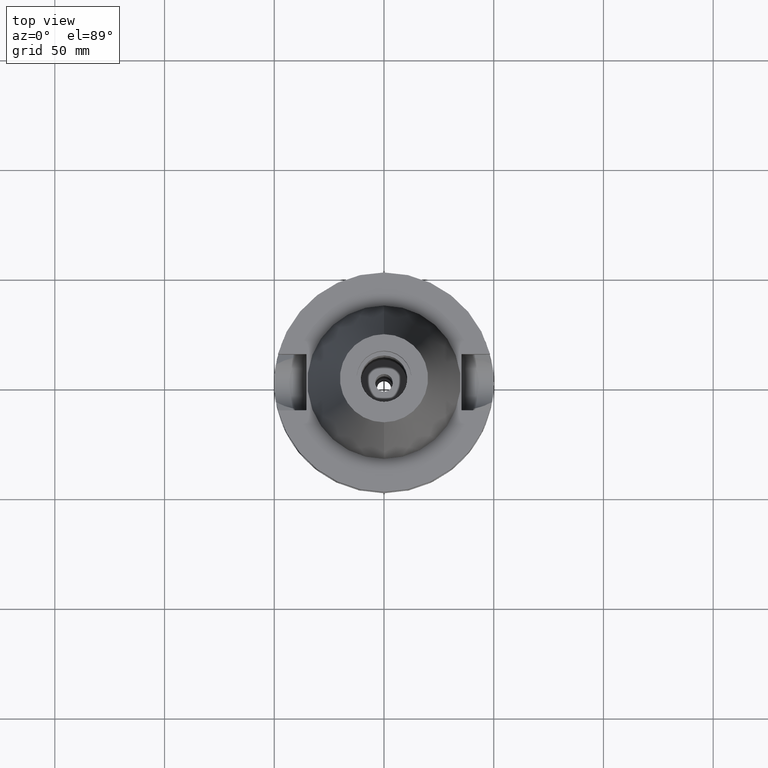
[diagram: clean part render]
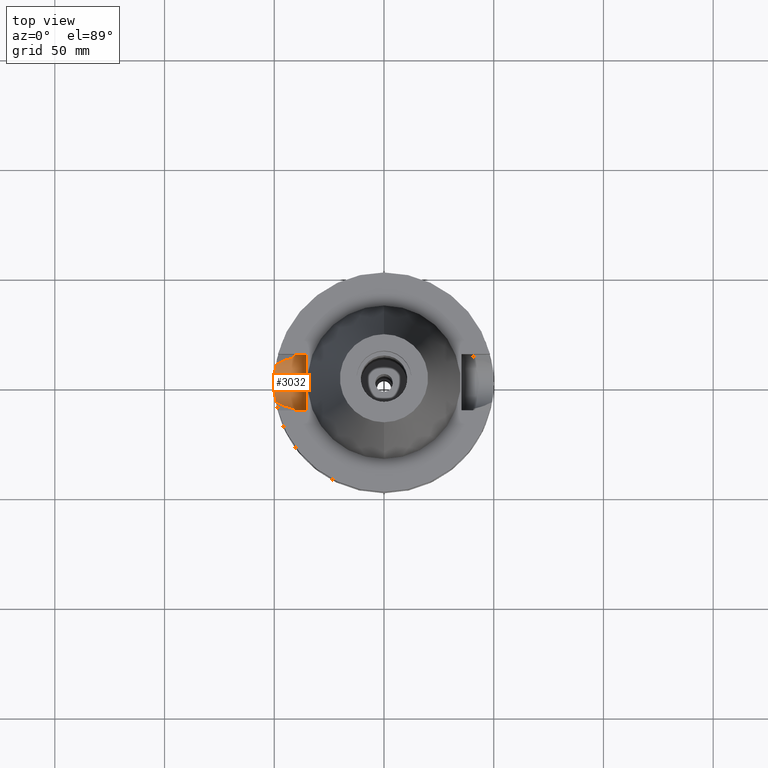
[diagram: same view with one face highlighted and labeled with its STEP entity id]
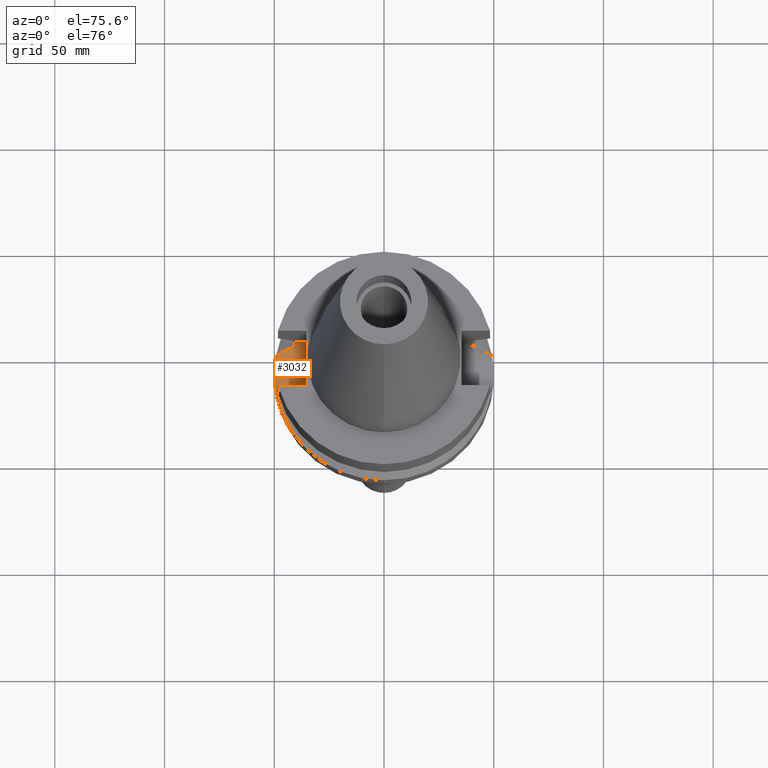
[diagram: same view with one face highlighted and labeled with its STEP entity id]
A machine part, top view. The second image highlights one B-rep face of the part: STEP entity #3032.
A second angle (auxiliary view) of the same face is appended — the face is thin or edge-on in the first view.
In plain terms, the highlighted cylindrical surface (edge-blend (fillet) strip) has radius 12.85 mm, axis along (-1, 0, 0).
Its self-contained STEP definition (entity closure, byte-faithful):
#12 = VECTOR ( 'NONE', #1833, 1000.000000000000000 ) ;
#21 = CARTESIAN_POINT ( 'NONE',  ( -45.51153680948555547, -10.31571076455013269, -28.81225329104412580 ) ) ;
#34 = EDGE_CURVE ( 'NONE', #1887, #485, #1314, .T. ) ;
#38 = ORIENTED_EDGE ( 'NONE', *, *, #2374, .T. ) ;
#47 = CARTESIAN_POINT ( 'NONE',  ( -49.66436400013849806, -5.785502170583692205, -32.62553262852259195 ) ) ;
#63 = CARTESIAN_POINT ( 'NONE',  ( -49.81880725734184523, -4.254068732978789846, -33.27613423622973698 ) ) ;
#140 = DIRECTION ( 'NONE',  ( 1.000000000000000000, 3.440913946376999995E-14, 0.0000000000000000000 ) ) ;
#143 = CARTESIAN_POINT ( 'NONE',  ( -40.68244639105407146, -12.29666286613858084, -24.88711474769678844 ) ) ;
#167 = ORIENTED_EDGE ( 'NONE', *, *, #873, .F. ) ;
#187 = CARTESIAN_POINT ( 'NONE',  ( -40.60092910951220091, -12.56261850439631722, -23.85257851100598003 ) ) ;
#194 = B_SPLINE_CURVE_WITH_KNOTS ( 'NONE', 3,
 ( #1737, #1984, #2962, #709, #222, #2720, #2478, #1191, #21, #1997, #759, #2733, #519, #582, #1317, #1835 ),
 .UNSPECIFIED., .F., .F.,
 ( 4, 2, 2, 1, 1, 1, 1, 2, 2, 4 ),
 ( 0.0000000000000000000, 0.2499999999999817923, 0.3749999999999735767, 0.4374999999999696909, 0.4687499999999678590, 0.4843749999999671374, 0.4921874999999659717, 0.4960937499999655831, 0.4999999999999652500, 1.000000000000000000 ),
 .UNSPECIFIED. ) ;
#208 = VERTEX_POINT ( 'NONE', #2128 ) ;
#211 = CARTESIAN_POINT ( 'NONE',  ( -45.35666226408518042, 10.37432102602085493, -28.73269380965318121 ) ) ;
#222 = CARTESIAN_POINT ( 'NONE',  ( -46.77591822485125306, -9.802183307149345382, -29.46222612251301953 ) ) ;
#229 = CARTESIAN_POINT ( 'NONE',  ( -49.72680802979219550, 5.221633248343043654, -32.89276324369564009 ) ) ;
#264 = CARTESIAN_POINT ( 'NONE',  ( -49.64898610884509367, 5.924049219701441160, -32.55967030404950435 ) ) ;
#285 = CARTESIAN_POINT ( 'NONE',  ( -40.85052569294000335, -11.72538061688000077, -26.40718074535000426 ) ) ;
#310 = CARTESIAN_POINT ( 'NONE',  ( -45.48245625892009514, 10.32666876286955038, -28.79739259577955224 ) ) ;
#321 = VERTEX_POINT ( 'NONE', #1930 ) ;
#381 = VERTEX_POINT ( 'NONE', #1717 ) ;
#426 = CARTESIAN_POINT ( 'NONE',  ( -40.62483067706965301, -12.48524489601429188, -24.19332376315256639 ) ) ;
#442 = CARTESIAN_POINT ( 'NONE',  ( -40.60257244295533496, -12.55730800210175779, -23.87713024257998740 ) ) ;
#462 = CARTESIAN_POINT ( 'NONE',  ( -49.55655204302848915, 6.644431293633355828, -32.14882155011503784 ) ) ;
#482 = CARTESIAN_POINT ( 'NONE',  ( -49.54911688007178583, 6.699663358972188121, -32.11529720883915928 ) ) ;
#485 = VERTEX_POINT ( 'NONE', #2257 ) ;
#487 = CARTESIAN_POINT ( 'NONE',  ( -40.85052569294000335, 11.72538061688000077, -26.40718074535000426 ) ) ;
#509 = CARTESIAN_POINT ( 'NONE',  ( -49.79008146599075246, 4.576641034186114787, -33.15737214668407518 ) ) ;
#519 = CARTESIAN_POINT ( 'NONE',  ( -45.36036240325719149, -10.37294733292019799, -28.73449114628315115 ) ) ;
#553 = CARTESIAN_POINT ( 'NONE',  ( -49.57420851440681275, -6.511617492776406557, -32.22817501045152255 ) ) ;
#563 = ORIENTED_EDGE ( 'NONE', *, *, #2307, .F. ) ;
#569 = CARTESIAN_POINT ( 'NONE',  ( -49.38324903669490595, -7.860828855714136587, -31.35774967417576775 ) ) ;
#575 = DIRECTION ( 'NONE',  ( 0.0000000000000000000, -1.000000000000000000, 0.0000000000000000000 ) ) ;
#582 = CARTESIAN_POINT ( 'NONE',  ( -44.04299288609625762, -10.86792182048281141, -28.05681832449124258 ) ) ;
#623 = CARTESIAN_POINT ( 'NONE',  ( -40.51083188481999997, 12.84999999999999964, -21.14999999999999858 ) ) ;
#648 = EDGE_CURVE ( 'NONE', #485, #1060, #194, .T. ) ;
#654 = CARTESIAN_POINT ( 'NONE',  ( -35.39999999999999858, 1.497743035356999952E-14, -21.14999999999999858 ) ) ;
#655 = ORIENTED_EDGE ( 'NONE', *, *, #972, .T. ) ;
#684 = CARTESIAN_POINT ( 'NONE',  ( -49.37891072606739584, 7.861784143187398044, -31.32216870072557313 ) ) ;
#698 = CARTESIAN_POINT ( 'NONE',  ( -44.09428801575791823, 10.82153218492427627, -28.08304494226428716 ) ) ;
#699 = CARTESIAN_POINT ( 'NONE',  ( -49.99657010604428109, 0.6197521065457266554, -33.98745896372766850 ) ) ;
#709 = CARTESIAN_POINT ( 'NONE',  ( -47.11300662444745768, -9.652607655461894254, -29.63533319679338973 ) ) ;
#715 = CARTESIAN_POINT ( 'NONE',  ( -49.52357036701543791, 6.886290593201245258, -31.99961560274276806 ) ) ;
#750 = CARTESIAN_POINT ( 'NONE',  ( -49.78714585123640290, 4.608515934755402554, -33.14520686597824550 ) ) ;
#759 = CARTESIAN_POINT ( 'NONE',  ( -45.39637948587878213, -10.35937567599534681, -28.75301847058063487 ) ) ;
#763 = CARTESIAN_POINT ( 'NONE',  ( -49.79024291477946207, -4.574903425317671690, -33.15803416391790392 ) ) ;
#772 = B_SPLINE_CURVE_WITH_KNOTS ( 'NONE', 3,
 ( #2898, #1935, #2914, #1443, #698, #1693, #2674, #2435, #211, #1198, #1752, #310, #1969, #2035, #2515 ),
 .UNSPECIFIED., .F., .F.,
 ( 4, 2, 2, 1, 1, 1, 2, 2, 4 ),
 ( 0.0000000000000000000, 0.2500000000000056621, 0.3750000000000091593, 0.4375000000000118239, 0.4687500000000131006, 0.4843750000000147105, 0.4921875000000155431, 0.5000000000000164313, 1.000000000000000000 ),
 .UNSPECIFIED. ) ;
#790 = CARTESIAN_POINT ( 'NONE',  ( -49.79683695212672490, -4.502663508462969588, -33.18534950413661733 ) ) ;
#843 = CARTESIAN_POINT ( 'NONE',  ( -40.51083188481999997, 12.84999999999999964, -21.14999999999999858 ) ) ;
#873 = EDGE_CURVE ( 'NONE', #208, #2572, #3077, .T. ) ;
#884 = VERTEX_POINT ( 'NONE', #2350 ) ;
#922 = CARTESIAN_POINT ( 'NONE',  ( -40.59737061725677876, 12.57411364518127783, -23.79856269428630355 ) ) ;
#939 = CARTESIAN_POINT ( 'NONE',  ( -49.79203021164228460, 4.555405786561365744, -33.16544452546485644 ) ) ;
#940 = CYLINDRICAL_SURFACE ( 'NONE', #2968, 12.85000000000000320 ) ;
#962 = CARTESIAN_POINT ( 'NONE',  ( -40.59544857123437112, 12.58031941217195815, -23.76894563306476016 ) ) ;
#972 = EDGE_CURVE ( 'NONE', #1060, #321, #1350, .T. ) ;
#974 = CARTESIAN_POINT ( 'NONE',  ( -49.45261097669710182, 7.378715930581751792, -31.67219524212046977 ) ) ;
#978 = ORIENTED_EDGE ( 'NONE', *, *, #1289, .T. ) ;
#1029 = CARTESIAN_POINT ( 'NONE',  ( -49.98151994503457018, -1.536776124998682658, -33.93130987540744314 ) ) ;
#1055 = B_SPLINE_CURVE_WITH_KNOTS ( 'NONE', 3,
 ( #843, #2822, #1633, #1386, #1569, #2329, #2171, #1403, #2155, #962, #922, #2380, #1682, #487 ),
 .UNSPECIFIED., .F., .F.,
 ( 4, 2, 2, 1, 1, 2, 2, 4 ),
 ( 0.0000000000000000000, 0.2499999999999897859, 0.3749999999999846234, 0.4374999999999831246, 0.4687499999999832356, 0.4843749999999832356, 0.4999999999999833467, 1.000000000000000000 ),
 .UNSPECIFIED. ) ;
#1060 = VERTEX_POINT ( 'NONE', #285 ) ;
#1113 = AXIS2_PLACEMENT_3D ( 'NONE', #2611, #2118, #575 ) ;
#1136 = VECTOR ( 'NONE', #140, 1000.000000000000000 ) ;
#1191 = CARTESIAN_POINT ( 'NONE',  ( -45.67171378266974102, -10.25422400388750432, -28.89463801037553026 ) ) ;
#1198 = CARTESIAN_POINT ( 'NONE',  ( -45.42021646343764729, 10.35029699050675767, -28.76538144885619985 ) ) ;
#1214 = CARTESIAN_POINT ( 'NONE',  ( -49.78020860953715498, 4.683043310261034264, -33.11642240111309121 ) ) ;
#1229 = CARTESIAN_POINT ( 'NONE',  ( -49.54076674230224597, 6.761186823336355900, -32.07757331929249744 ) ) ;
#1251 = CARTESIAN_POINT ( 'NONE',  ( -49.48027691450566579, -7.211450073653043802, -31.80475318125221307 ) ) ;
#1289 = EDGE_CURVE ( 'NONE', #381, #2572, #2466, .T. ) ;
#1314 = B_SPLINE_CURVE_WITH_KNOTS ( 'NONE', 3,
 ( #2724, #1988, #684, #974, #2948, #1676, #715, #1229, #482, #2454, #2232, #2183, #462, #3160, #264, #1919, #229, #1694, #2967, #1214, #750, #509, #939, #2167, #2899, #2217, #1936, #2201, #2915, #699, #2675, #1444, #2436, #3176, #3190, #1970, #1029, #3008, #2837, #1803, #1786, #63, #2353, #790, #1359, #2263, #763, #2544, #1754, #47, #1531, #2036, #2768, #553, #2782, #3024, #1621, #2016, #1544, #1251, #569, #1560 ),
 .UNSPECIFIED., .F., .F.,
 ( 4, 2, 2, 1, 1, 1, 1, 2, 2, 2, 2, 1, 1, 1, 2, 2, 2, 2, 1, 1, 1, 2, 2, 2, 2, 1, 1, 1, 1, 2, 2, 2, 2, 1, 1, 1, 1, 2, 2, 4 ),
 ( 0.0000000000000000000, 0.06250000000001100509, 0.09375000000001651457, 0.1093750000000188599, 0.1171875000000200950, 0.1210937500000207750, 0.1230468750000213857, 0.1240234375000217049, 0.1250000000000220102, 0.1875000000000213718, 0.2187500000000207334, 0.2343750000000206224, 0.2421875000000206224, 0.2460937500000204281, 0.2480468750000203448, 0.2500000000000202061, 0.3750000000000141553, 0.4375000000000112688, 0.4687500000000097700, 0.4843750000000089928, 0.4921875000000086042, 0.4960937500000084377, 0.5000000000000082157, 0.6250000000000021094, 0.6874999999999990008, 0.7187499999999974465, 0.7343749999999965583, 0.7421874999999958922, 0.7460937499999955591, 0.7480468749999953371, 0.7499999999999951150, 0.8124999999999884537, 0.8437499999999850120, 0.8593749999999835687, 0.8671874999999827915, 0.8710937499999823475, 0.8730468749999823475, 0.8740234374999823475, 0.8749999999999824585, 1.000000000000000000 ),
 .UNSPECIFIED. ) ;
#1317 = CARTESIAN_POINT ( 'NONE',  ( -42.54311803825711280, -11.33231253935101712, -27.28386219128601908 ) ) ;
#1350 = B_SPLINE_CURVE_WITH_KNOTS ( 'NONE', 3,
 ( #1375, #2371, #2655, #143, #2111, #1638, #426, #1408, #3081, #442, #187, #2888, #1865, #2875 ),
 .UNSPECIFIED., .F., .F.,
 ( 4, 2, 2, 1, 1, 2, 2, 4 ),
 ( 0.0000000000000000000, 0.2500000000000097700, 0.3750000000000154321, 0.4375000000000180966, 0.4687500000000194289, 0.4843750000000190403, 0.5000000000000186517, 1.000000000000000000 ),
 .UNSPECIFIED. ) ;
#1359 = CARTESIAN_POINT ( 'NONE',  ( -49.79360975992934613, -4.538122689714040092, -33.17198411708805850 ) ) ;
#1369 = ORIENTED_EDGE ( 'NONE', *, *, #1588, .T. ) ;
#1375 = CARTESIAN_POINT ( 'NONE',  ( -40.85052569294000335, -11.72538061688000077, -26.40718074535000426 ) ) ;
#1386 = CARTESIAN_POINT ( 'NONE',  ( -40.54025378189581374, 12.75731467218668058, -22.70686882179913013 ) ) ;
#1403 = CARTESIAN_POINT ( 'NONE',  ( -40.58662774857589284, 12.60877356363140400, -23.62931612667402703 ) ) ;
#1408 = CARTESIAN_POINT ( 'NONE',  ( -40.61157027093302929, -12.52820949424839547, -24.00859467746296261 ) ) ;
#1443 = CARTESIAN_POINT ( 'NONE',  ( -43.71927017477862165, 10.94309473526337229, -27.88982148177897358 ) ) ;
#1444 = CARTESIAN_POINT ( 'NONE',  ( -49.99978007005141478, 0.1277363648921317207, -33.99951339606992207 ) ) ;
#1531 = CARTESIAN_POINT ( 'NONE',  ( -49.64367505694872307, -5.960659301631875628, -32.53565567242807077 ) ) ;
#1544 = CARTESIAN_POINT ( 'NONE',  ( -49.55415699598221835, -6.662282079201852447, -32.13801721396347233 ) ) ;
#1560 = CARTESIAN_POINT ( 'NONE',  ( -49.26250064874000145, -8.556052234130000045, -30.73730776426999967 ) ) ;
#1569 = CARTESIAN_POINT ( 'NONE',  ( -40.54944812473201665, 12.72805978472033317, -22.93052269427768053 ) ) ;
#1588 = EDGE_CURVE ( 'NONE', #884, #1887, #772, .T. ) ;
#1616 = CARTESIAN_POINT ( 'NONE',  ( -35.39999999999999858, -12.84999999999999964, -21.14999999999999858 ) ) ;
#1621 = CARTESIAN_POINT ( 'NONE',  ( -49.55655823011631611, -6.644396915574215967, -32.14884227883744927 ) ) ;
#1633 = CARTESIAN_POINT ( 'NONE',  ( -40.51818735908894809, 12.82722126770181248, -22.03688626290863795 ) ) ;
#1638 = CARTESIAN_POINT ( 'NONE',  ( -40.63720027270115054, -12.44499102499862353, -24.35263434040134101 ) ) ;
#1647 = DIRECTION ( 'NONE',  ( -1.000000000000000000, 0.0000000000000000000, 0.0000000000000000000 ) ) ;
#1676 = CARTESIAN_POINT ( 'NONE',  ( -49.50798016005921909, 6.996952392741774496, -31.92837050208759209 ) ) ;
#1682 = CARTESIAN_POINT ( 'NONE',  ( -40.73816962964794186, 12.11682243018512750, -25.53412644634842366 ) ) ;
#1693 = CARTESIAN_POINT ( 'NONE',  ( -44.63758165130715838, 10.63538144912474692, -28.36274595295131817 ) ) ;
#1694 = CARTESIAN_POINT ( 'NONE',  ( -49.75319208409520400, 4.961948302318586634, -33.00370953075621827 ) ) ;
#1717 = CARTESIAN_POINT ( 'NONE',  ( -35.39999999999999858, -12.84999999999999964, -21.14999999999999858 ) ) ;
#1737 = CARTESIAN_POINT ( 'NONE',  ( -49.26250064874000145, -8.556052234130000045, -30.73730776426999967 ) ) ;
#1752 = CARTESIAN_POINT ( 'NONE',  ( -45.46248575714179196, 10.33426622337170286, -28.78712144906410586 ) ) ;
#1754 = CARTESIAN_POINT ( 'NONE',  ( -49.72328725741475353, -5.263682542900750327, -32.87883983964418633 ) ) ;
#1777 = CARTESIAN_POINT ( 'NONE',  ( -35.39999999999999858, 12.84999999999999964, -21.14999999999999858 ) ) ;
#1786 = CARTESIAN_POINT ( 'NONE',  ( -49.84644755718477427, -3.921701315968947554, -33.38981237029192783 ) ) ;
#1803 = CARTESIAN_POINT ( 'NONE',  ( -49.86770969762229555, -3.635792841567102140, -33.47650553586836253 ) ) ;
#1833 = DIRECTION ( 'NONE',  ( -1.000000000000000000, 3.440913946376999995E-14, 0.0000000000000000000 ) ) ;
#1835 = CARTESIAN_POINT ( 'NONE',  ( -40.85052569294000335, -11.72538061688000077, -26.40718074535000426 ) ) ;
#1860 = LINE ( 'NONE', #1616, #12 ) ;
#1865 = CARTESIAN_POINT ( 'NONE',  ( -40.51083188481999287, -12.84999999999998721, -22.03309742078719324 ) ) ;
#1887 = VERTEX_POINT ( 'NONE', #2339 ) ;
#1919 = CARTESIAN_POINT ( 'NONE',  ( -49.70815231128459288, 5.396331755793865703, -32.81362775822982059 ) ) ;
#1930 = CARTESIAN_POINT ( 'NONE',  ( -40.51083188481999997, -12.84999999999999964, -21.14999999999999858 ) ) ;
#1935 = CARTESIAN_POINT ( 'NONE',  ( -41.72878221436359070, 11.52142447622554755, -26.86207539215224216 ) ) ;
#1936 = CARTESIAN_POINT ( 'NONE',  ( -49.96641267300124412, 1.854385217468973224, -33.87144511945189151 ) ) ;
#1969 = CARTESIAN_POINT ( 'NONE',  ( -46.92211091234269560, 9.777077076806934386, -29.53782403633513098 ) ) ;
#1970 = CARTESIAN_POINT ( 'NONE',  ( -49.99934626392777659, -0.7783924084006701438, -33.99780972341375218 ) ) ;
#1984 = CARTESIAN_POINT ( 'NONE',  ( -48.69891583527445533, -8.879474368004313334, -30.44867442328018470 ) ) ;
#1988 = CARTESIAN_POINT ( 'NONE',  ( -49.32372953348500033, 8.203519559946931494, -31.05192038010702760 ) ) ;
#1997 = CARTESIAN_POINT ( 'NONE',  ( -45.43099472295201480, -10.34629958904202596, -28.77082437957606942 ) ) ;
#2016 = CARTESIAN_POINT ( 'NONE',  ( -49.55507279109171037, -6.655467508104375263, -32.14214692837576592 ) ) ;
#2035 = CARTESIAN_POINT ( 'NONE',  ( -48.17474286457279931, 9.180279387332983987, -30.18022539452823594 ) ) ;
#2036 = CARTESIAN_POINT ( 'NONE',  ( -49.61106985601747255, -6.224615895861791870, -32.39218330882798114 ) ) ;
#2111 = CARTESIAN_POINT ( 'NONE',  ( -40.66327750826899745, -12.35976744502590563, -24.67240287692017375 ) ) ;
#2118 = DIRECTION ( 'NONE',  ( 1.000000000000000000, 0.0000000000000000000, 0.0000000000000000000 ) ) ;
#2128 = CARTESIAN_POINT ( 'NONE',  ( -40.51083188481999997, 12.84999999999999964, -21.14999999999999858 ) ) ;
#2155 = CARTESIAN_POINT ( 'NONE',  ( -40.59188576338535626, 12.59181613885665385, -23.71309950381344933 ) ) ;
#2167 = CARTESIAN_POINT ( 'NONE',  ( -49.79288518046980982, 4.546060315005117758, -33.16898483581467616 ) ) ;
#2168 = DIRECTION ( 'NONE',  ( 0.0000000000000000000, 0.0000000000000000000, -1.000000000000000000 ) ) ;
#2171 = CARTESIAN_POINT ( 'NONE',  ( -40.57496242610246640, 12.64633064307739474, -23.43373649621299748 ) ) ;
#2183 = CARTESIAN_POINT ( 'NONE',  ( -49.55614273364346190, 6.647481783994168225, -32.14697738339243216 ) ) ;
#2201 = CARTESIAN_POINT ( 'NONE',  ( -49.97921345346022548, 1.472277929477852743, -33.92105547450366032 ) ) ;
#2217 = CARTESIAN_POINT ( 'NONE',  ( -49.91493021339716307, 3.003896464634252972, -33.66817669941325875 ) ) ;
#2221 = EDGE_LOOP ( 'NONE', ( #655, #563, #978, #167, #38, #1369, #3025, #2376 ) ) ;
#2232 = CARTESIAN_POINT ( 'NONE',  ( -49.55497938656612433, 6.656146421974934668, -32.14173509727237388 ) ) ;
#2257 = CARTESIAN_POINT ( 'NONE',  ( -49.26250064874000145, -8.556052234130000045, -30.73730776426999967 ) ) ;
#2263 = CARTESIAN_POINT ( 'NONE',  ( -49.79144986254378580, -4.561756691851105217, -33.16303606682202343 ) ) ;
#2307 = EDGE_CURVE ( 'NONE', #381, #321, #1860, .T. ) ;
#2329 = CARTESIAN_POINT ( 'NONE',  ( -40.56599794183719609, 12.67508828619679484, -23.26599945042062245 ) ) ;
#2339 = CARTESIAN_POINT ( 'NONE',  ( -49.26250064874000145, 8.556052234130000045, -30.73730776426999967 ) ) ;
#2350 = CARTESIAN_POINT ( 'NONE',  ( -40.85052569294000335, 11.72538061688000077, -26.40718074535000426 ) ) ;
#2353 = CARTESIAN_POINT ( 'NONE',  ( -49.80427849008727748, -4.419869523235816722, -33.21613890188682916 ) ) ;
#2371 = CARTESIAN_POINT ( 'NONE',  ( -40.79434733663808998, -11.92110265459549190, -25.97065107317780530 ) ) ;
#2374 = EDGE_CURVE ( 'NONE', #208, #884, #1055, .T. ) ;
#2376 = ORIENTED_EDGE ( 'NONE', *, *, #648, .T. ) ;
#2378 = FACE_OUTER_BOUND ( 'NONE', #2221, .T. ) ;
#2380 = CARTESIAN_POINT ( 'NONE',  ( -40.65436025735043302, 12.39001373507936599, -24.66363152923379332 ) ) ;
#2435 = CARTESIAN_POINT ( 'NONE',  ( -45.20731732068905018, 10.43021882779703446, -28.65587838152220712 ) ) ;
#2436 = CARTESIAN_POINT ( 'NONE',  ( -49.99988097685537980, 0.05777274203794562080, -33.99989126171292497 ) ) ;
#2454 = CARTESIAN_POINT ( 'NONE',  ( -49.55322993648809415, 6.669162169009498875, -32.13384980545948366 ) ) ;
#2466 = CIRCLE ( 'NONE', #1113, 12.84999999999999964 ) ;
#2478 = CARTESIAN_POINT ( 'NONE',  ( -45.98843892950645085, -10.13003563245722560, -29.05751307446865539 ) ) ;
#2515 = CARTESIAN_POINT ( 'NONE',  ( -49.26250064874000145, 8.556052234130000045, -30.73730776426999967 ) ) ;
#2544 = CARTESIAN_POINT ( 'NONE',  ( -49.75837799920811477, -4.920711290956972128, -33.02594009674062647 ) ) ;
#2572 = VERTEX_POINT ( 'NONE', #1777 ) ;
#2611 = CARTESIAN_POINT ( 'NONE',  ( -35.39999999999999858, 1.497743035356999952E-14, -21.14999999999999858 ) ) ;
#2655 = CARTESIAN_POINT ( 'NONE',  ( -40.74530521662885718, -12.08734525798915982, -25.53455946907622476 ) ) ;
#2674 = CARTESIAN_POINT ( 'NONE',  ( -44.90442018760180787, 10.54135331295074884, -28.50006426117082370 ) ) ;
#2675 = CARTESIAN_POINT ( 'NONE',  ( -49.99918696135939200, 0.2913176025547605241, -33.99729381971398823 ) ) ;
#2720 = CARTESIAN_POINT ( 'NONE',  ( -46.25369682759787793, -10.02157968383447439, -29.19386665822117166 ) ) ;
#2724 = CARTESIAN_POINT ( 'NONE',  ( -49.26250064874000145, 8.556052234130000045, -30.73730776426999967 ) ) ;
#2733 = CARTESIAN_POINT ( 'NONE',  ( -45.37328106116603266, -10.36808561072752077, -28.74113660982457574 ) ) ;
#2768 = CARTESIAN_POINT ( 'NONE',  ( -49.59437430901522248, -6.356898426652898060, -32.31828320198991378 ) ) ;
#2782 = CARTESIAN_POINT ( 'NONE',  ( -49.56395370299283343, -6.589055712029888490, -32.18213532707051172 ) ) ;
#2822 = CARTESIAN_POINT ( 'NONE',  ( -40.51083188482001418, 12.85000000000001918, -21.59155125953545706 ) ) ;
#2837 = CARTESIAN_POINT ( 'NONE',  ( -49.90699458497459062, -3.063359791290829914, -33.63580153772429782 ) ) ;
#2875 = CARTESIAN_POINT ( 'NONE',  ( -40.51083188481999997, -12.84999999999999964, -21.14999999999999858 ) ) ;
#2888 = CARTESIAN_POINT ( 'NONE',  ( -40.54025138676031048, -12.75862549540203794, -22.93152005439002750 ) ) ;
#2898 = CARTESIAN_POINT ( 'NONE',  ( -40.85052569294000335, 11.72538061688000077, -26.40718074535000426 ) ) ;
#2899 = CARTESIAN_POINT ( 'NONE',  ( -49.86316841602503303, 3.774661686522286175, -33.45988861107424839 ) ) ;
#2914 = CARTESIAN_POINT ( 'NONE',  ( -42.55575040000118747, 11.29794162055562978, -27.28963183776594903 ) ) ;
#2915 = CARTESIAN_POINT ( 'NONE',  ( -49.99187456503518945, 0.9032426747431048231, -33.96962919624208155 ) ) ;
#2948 = CARTESIAN_POINT ( 'NONE',  ( -49.47566580386633461, 7.222569677959111090, -31.77964915287858361 ) ) ;
#2962 = CARTESIAN_POINT ( 'NONE',  ( -48.09109422751811280, -9.195454861103204536, -30.13726687825376871 ) ) ;
#2967 = CARTESIAN_POINT ( 'NONE',  ( -49.76598423038211649, 4.832695555694195733, -33.05724367539637853 ) ) ;
#2968 = AXIS2_PLACEMENT_3D ( 'NONE', #654, #1647, #2168 ) ;
#3008 = CARTESIAN_POINT ( 'NONE',  ( -49.92886531851238630, -2.680927592863302067, -33.72320138187615868 ) ) ;
#3024 = CARTESIAN_POINT ( 'NONE',  ( -49.55878331875836551, -6.627792135834708276, -32.15886750777556102 ) ) ;
#3025 = ORIENTED_EDGE ( 'NONE', *, *, #34, .T. ) ;
#3032 = ADVANCED_FACE ( 'NONE', ( #2378 ), #940, .F. ) ;
#3077 = LINE ( 'NONE', #623, #1136 ) ;
#3081 = CARTESIAN_POINT ( 'NONE',  ( -40.60613812303880366, -12.54578004799953739, -23.92968102609992087 ) ) ;
#3160 = CARTESIAN_POINT ( 'NONE',  ( -49.60527657799642753, 6.280734338879293333, -32.36827992170265134 ) ) ;
#3176 = CARTESIAN_POINT ( 'NONE',  ( -49.99991418525014097, 0.01116271473765844541, -34.00001628486784711 ) ) ;
#3190 = CARTESIAN_POINT ( 'NONE',  ( -49.99991299091099961, -0.01387171431247808014, -34.00001339701643133 ) ) ;